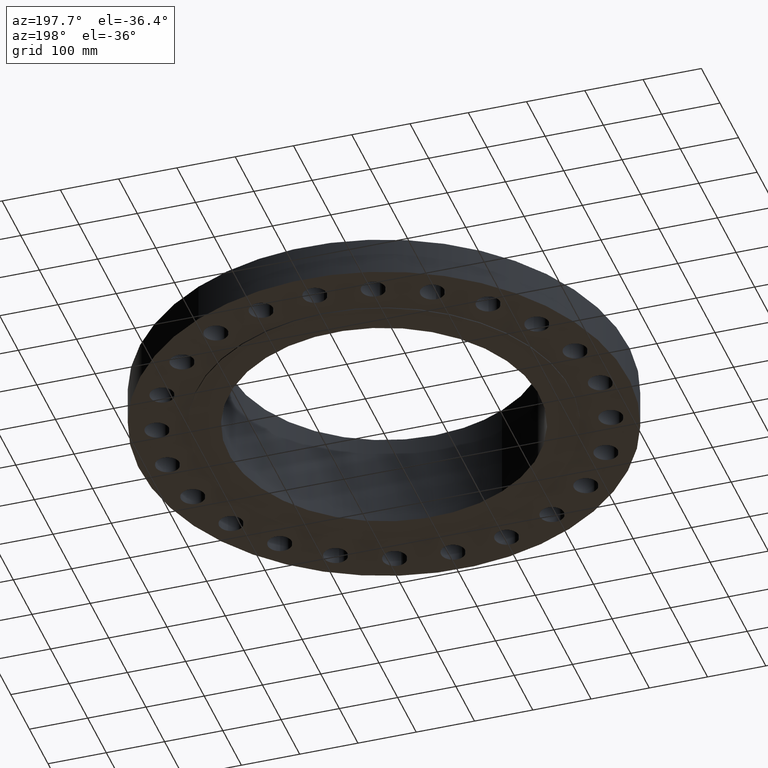
[diagram: clean part render]
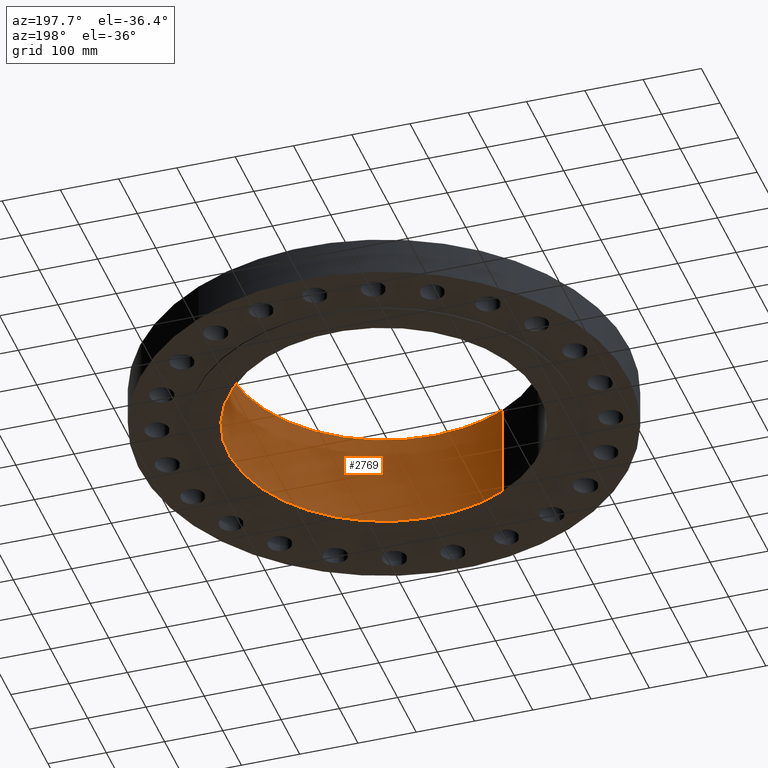
[diagram: same view with one face highlighted and labeled with its STEP entity id]
A machine part, auxiliary view. The second image highlights one B-rep face of the part: STEP entity #2769.
In plain terms, the highlighted cylindrical surface (partial cylindrical patch) has radius 266.7 mm, axis along (-0, 0, -1).
Its self-contained STEP definition (entity closure, byte-faithful):
#2450=AXIS2_PLACEMENT_3D('Circle Axis2P3D',#2448,#2449,$) ;
#2718=AXIS2_PLACEMENT_3D('Cylinder Axis2P3D',#2715,#2716,#2717) ;
#2448=CARTESIAN_POINT('Axis2P3D Location',(-1.28132675074E-011,-3.33451551585E-013,-0.0625000000003)) ;
#2452=CARTESIAN_POINT('Vertex',(5.03396815535,9.21461689985,-0.0625000000004)) ;
#2454=CARTESIAN_POINT('Vertex',(-5.03396815535,-9.21461689985,-0.062499999973)) ;
#2715=CARTESIAN_POINT('Axis2P3D Location',(0.,0.,3.18375000001)) ;
#2721=CARTESIAN_POINT('Control Point',(5.03396815535,9.21461689985,6.43000000003)) ;
#2722=CARTESIAN_POINT('Control Point',(5.7576824743,8.81924996547,6.43000000003)) ;
#2723=CARTESIAN_POINT('Control Point',(6.44258173524,8.35283254397,6.43000000003)) ;
#2724=CARTESIAN_POINT('Control Point',(7.07936214492,7.82044132668,6.43000000003)) ;
#2725=CARTESIAN_POINT('Control Point',(8.24011165114,6.63756795279,6.43000000003)) ;
#2726=CARTESIAN_POINT('Control Point',(9.14866002962,5.25154173413,6.43000000004)) ;
#2727=CARTESIAN_POINT('Control Point',(9.53323111842,4.51599107235,6.43000000004)) ;
#2728=CARTESIAN_POINT('Control Point',(10.1529577868,2.97895896751,6.43000000004)) ;
#2729=CARTESIAN_POINT('Control Point',(10.4619377673,1.35075130062,6.43000000004)) ;
#2730=CARTESIAN_POINT('Control Point',(10.5357520731,0.524022114821,6.43000000004)) ;
#2731=CARTESIAN_POINT('Control Point',(10.5201081363,-1.13316951625,6.43000000004)) ;
#2732=CARTESIAN_POINT('Control Point',(10.1824803176,-2.75567877382,6.43000000005)) ;
#2733=CARTESIAN_POINT('Control Point',(9.93430028149,-3.54772445942,6.43000000005)) ;
#2734=CARTESIAN_POINT('Control Point',(9.28566738697,-5.07278321336,6.43000000005)) ;
#2735=CARTESIAN_POINT('Control Point',(8.35283254397,-6.44258173524,6.43000000005)) ;
#2736=CARTESIAN_POINT('Control Point',(7.82044132668,-7.07936214491,6.43000000005)) ;
#2737=CARTESIAN_POINT('Control Point',(6.63756795279,-8.24011165113,6.43000000005)) ;
#2738=CARTESIAN_POINT('Control Point',(5.25154173414,-9.14866002961,6.43000000005)) ;
#2739=CARTESIAN_POINT('Control Point',(4.51599107236,-9.53323111842,6.43000000006)) ;
#2740=CARTESIAN_POINT('Control Point',(2.97895896751,-10.1529577868,6.43000000006)) ;
#2741=CARTESIAN_POINT('Control Point',(1.35075130063,-10.4619377673,6.43000000006)) ;
#2742=CARTESIAN_POINT('Control Point',(0.524022114826,-10.5357520731,6.43000000006)) ;
#2743=CARTESIAN_POINT('Control Point',(-1.13316951624,-10.5201081363,6.43000000006)) ;
#2744=CARTESIAN_POINT('Control Point',(-2.75567877382,-10.1824803176,6.43000000006)) ;
#2745=CARTESIAN_POINT('Control Point',(-3.54772445941,-9.9343002815,6.43000000006)) ;
#2746=CARTESIAN_POINT('Control Point',(-4.31025383638,-9.60998383423,6.43000000007)) ;
#2747=CARTESIAN_POINT('Control Point',(-5.03396815534,-9.21461689985,6.43000000007)) ;
#2748=CARTESIAN_POINT('Vertex',(5.03396815535,9.21461689985,6.43000000007)) ;
#2750=CARTESIAN_POINT('Vertex',(-5.03396815532,-9.21461689984,6.43000000003)) ;
#2753=CARTESIAN_POINT('Line Origine',(5.03396815535,9.21461689985,3.18375000003)) ;
#2758=CARTESIAN_POINT('Line Origine',(-5.03396815535,-9.21461689985,3.18375000003)) ;
#2449=DIRECTION('Axis2P3D Direction',(0.,0.,-0.0393700787402)) ;
#2716=DIRECTION('Axis2P3D Direction',(-0.,0.,-0.0393700787402)) ;
#2717=DIRECTION('Axis2P3D XDirection',(0.0188750212049,0.0345504945626,0.)) ;
#2754=DIRECTION('Vector Direction',(0.,0.,-0.0393700787402)) ;
#2759=DIRECTION('Vector Direction',(0.,0.,-0.0393700787402)) ;
#2755=VECTOR('Line Direction',#2754,0.0393700787402) ;
#2760=VECTOR('Line Direction',#2759,0.0393700787402) ;
#2764=ORIENTED_EDGE('',*,*,#2752,.F.) ;
#2765=ORIENTED_EDGE('',*,*,#2757,.T.) ;
#2766=ORIENTED_EDGE('',*,*,#2456,.T.) ;
#2767=ORIENTED_EDGE('',*,*,#2762,.F.) ;
#2769=ADVANCED_FACE('PartBody',(#2768),#2719,.F.) ;
#2720=B_SPLINE_CURVE_WITH_KNOTS('',5,(#2721,#2722,#2723,#2724,#2725,#2726,#2727,#2728,#2729,#2730,#2731,#2732,#2733,#2734,#2735,#2736,#2737,#2738,#2739,#2740,#2741,#2742,#2743,#2744,#2745,#2746,#2747),.UNSPECIFIED.,.F.,.U.,(6,3,3,3,3,3,3,3,6),(-418.931380356,-314.198535267,-209.465690178,-104.732845089,0.,104.732845089,209.465690178,314.198535267,418.931380356),.UNSPECIFIED.) ;
#2451=CIRCLE('generated circle',#2450,10.5) ;
#2719=CYLINDRICAL_SURFACE('generated cylinder',#2718,10.5) ;
#2456=EDGE_CURVE('',#2453,#2455,#2451,.T.) ;
#2752=EDGE_CURVE('',#2749,#2751,#2720,.T.) ;
#2757=EDGE_CURVE('',#2749,#2453,#2756,.T.) ;
#2762=EDGE_CURVE('',#2751,#2455,#2761,.T.) ;
#2763=EDGE_LOOP('',(#2764,#2765,#2766,#2767)) ;
#2768=FACE_OUTER_BOUND('',#2763,.T.) ;
#2756=LINE('Line',#2753,#2755) ;
#2761=LINE('Line',#2758,#2760) ;
#2453=VERTEX_POINT('',#2452) ;
#2455=VERTEX_POINT('',#2454) ;
#2749=VERTEX_POINT('',#2748) ;
#2751=VERTEX_POINT('',#2750) ;